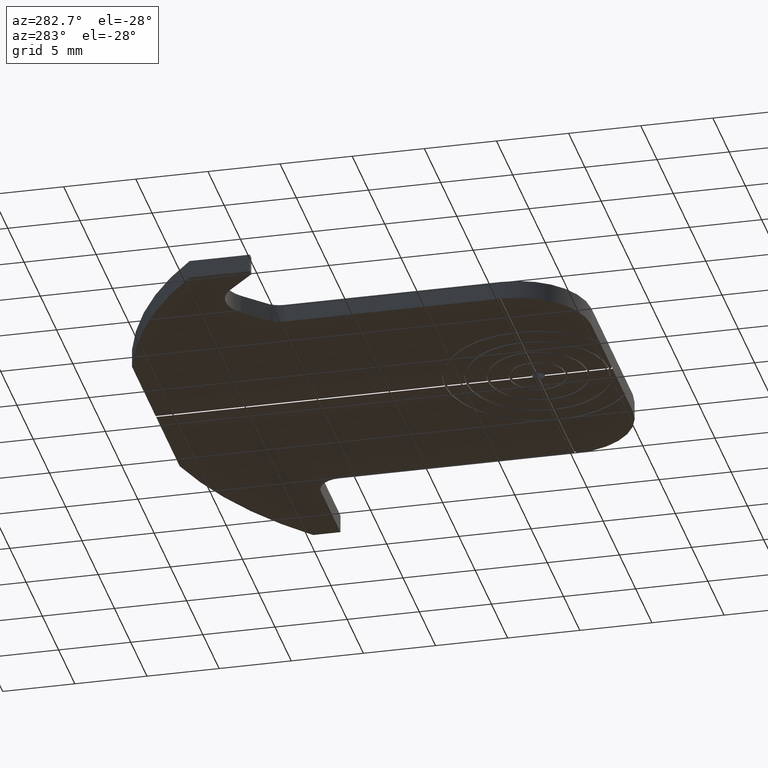
[diagram: clean part render]
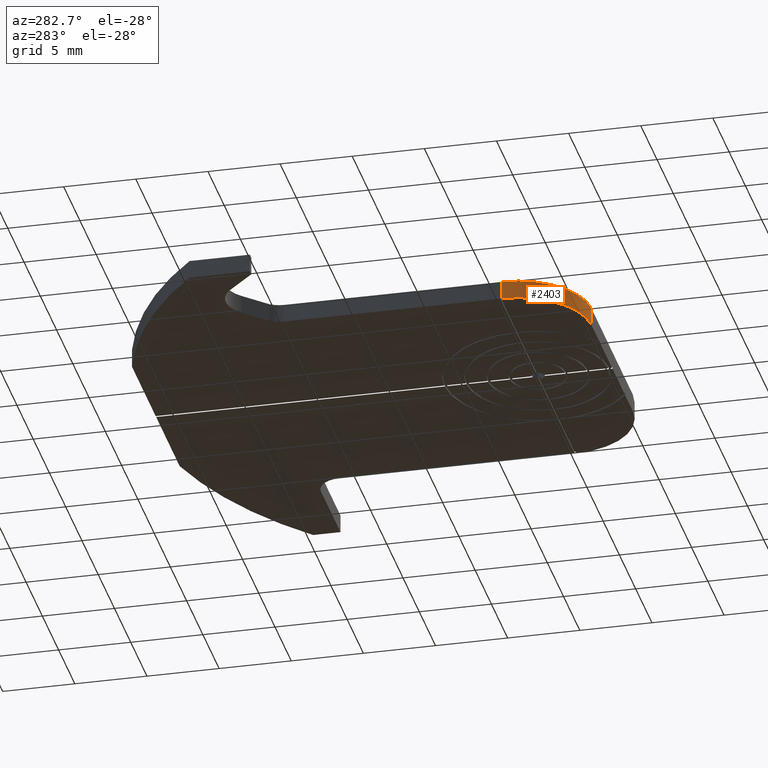
[diagram: same view with one face highlighted and labeled with its STEP entity id]
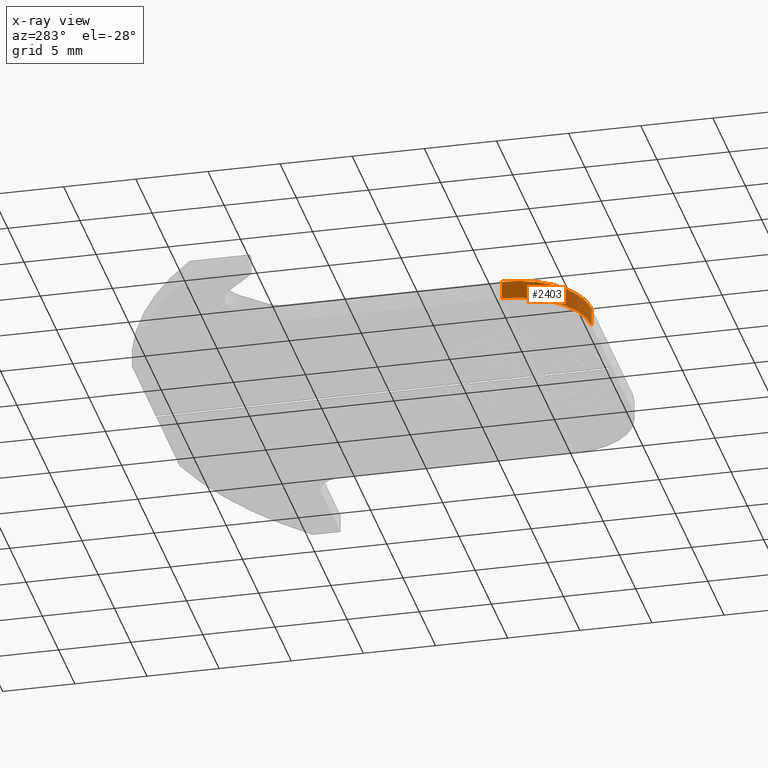
[diagram: x-ray of the same camera — body ghosted, the highlighted face saturated]
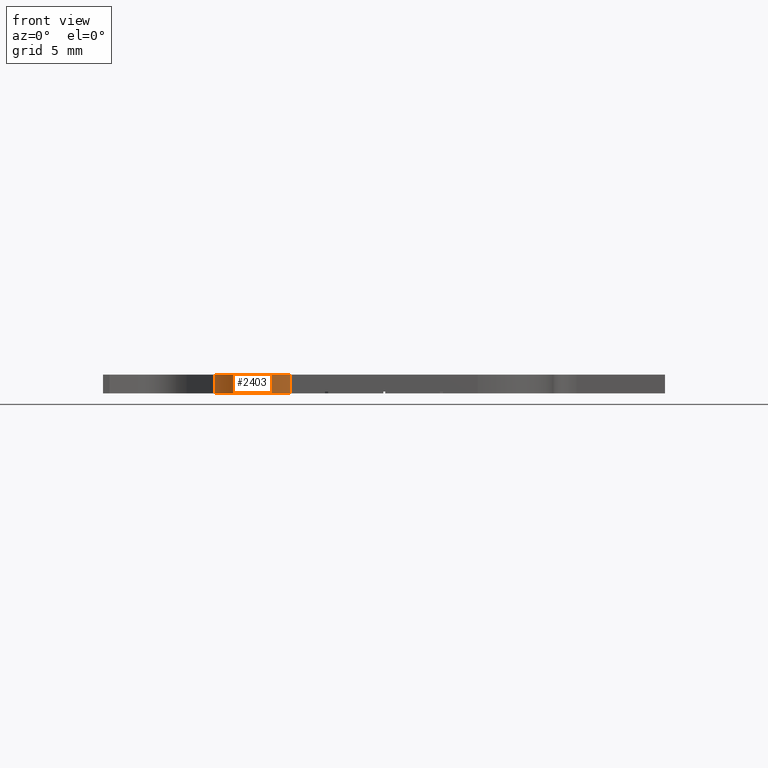
[diagram: same view with one face highlighted and labeled with its STEP entity id]
A machine part, auxiliary view. The second image highlights one B-rep face of the part: STEP entity #2403.
The next image is the same camera in x-ray: the body ghosted, the highlighted face saturated — about 0% of this face is hidden behind the body in this view.
A second angle (front view) of the same face is appended — the face is thin or edge-on in the first view.
In plain terms, the highlighted cylindrical surface (partial cylindrical patch) has radius 5.08 mm, axis along (-0, -0, -1).
Its self-contained STEP definition (entity closure, byte-faithful):
#151 = EDGE_CURVE ( 'NONE', #2236, #832, #4238, .T. ) ;
#290 = CARTESIAN_POINT ( 'NONE',  ( -11.42999999999999972, -0.05080000000001156507, 1.270000000000000018 ) ) ;
#388 = AXIS2_PLACEMENT_3D ( 'NONE', #1992, #2410, #3565 ) ;
#461 = DIRECTION ( 'NONE',  ( -1.000000000000000000, 0.000000000000000000, 0.000000000000000000 ) ) ;
#469 = CARTESIAN_POINT ( 'NONE',  ( -11.42994445671863346, -0.07455535000000322599, 0.1300000000000000044 ) ) ;
#580 = ORIENTED_EDGE ( 'NONE', *, *, #1328, .T. ) ;
#620 = DIRECTION ( 'NONE',  ( -0.000000000000000000, -0.000000000000000000, -1.000000000000000000 ) ) ;
#811 = CARTESIAN_POINT ( 'NONE',  ( -6.350000000000013856, -0.05080000000001218263, 1.270000000000000018 ) ) ;
#832 = VERTEX_POINT ( 'NONE', #2704 ) ;
#854 = CIRCLE ( 'NONE', #4812, 5.079999999999985860 ) ;
#1110 = VECTOR ( 'NONE', #1142, 1000.000000000000000 ) ;
#1124 = DIRECTION ( 'NONE',  ( -1.000000000000000000, 0.000000000000000000, 0.000000000000000000 ) ) ;
#1142 = DIRECTION ( 'NONE',  ( -0.000000000000000000, -0.000000000000000000, -1.000000000000000000 ) ) ;
#1188 = ORIENTED_EDGE ( 'NONE', *, *, #3915, .F. ) ;
#1193 = ORIENTED_EDGE ( 'NONE', *, *, #3421, .T. ) ;
#1243 = ORIENTED_EDGE ( 'NONE', *, *, #151, .F. ) ;
#1328 = EDGE_CURVE ( 'NONE', #3892, #2459, #1470, .T. ) ;
#1359 = CARTESIAN_POINT ( 'NONE',  ( -6.350000000000014744, -5.130799999999998029, 1.270000000000000018 ) ) ;
#1365 = AXIS2_PLACEMENT_3D ( 'NONE', #811, #1969, #461 ) ;
#1470 = CIRCLE ( 'NONE', #388, 5.079999999999985860 ) ;
#1489 = CARTESIAN_POINT ( 'NONE',  ( -6.350000000000013856, -0.05080000000001218263, 0.1300000000000000044 ) ) ;
#1737 = CARTESIAN_POINT ( 'NONE',  ( -6.350000000000014744, -5.130799999999998029, 0.000000000000000000 ) ) ;
#1775 = VECTOR ( 'NONE', #620, 1000.000000000000000 ) ;
#1833 = EDGE_CURVE ( 'NONE', #2236, #4456, #2527, .T. ) ;
#1969 = DIRECTION ( 'NONE',  ( -0.000000000000000000, -0.000000000000000000, -1.000000000000000000 ) ) ;
#1992 = CARTESIAN_POINT ( 'NONE',  ( -6.350000000000013856, -0.05080000000001218263, 0.000000000000000000 ) ) ;
#2213 = DIRECTION ( 'NONE',  ( 0.000000000000000000, 0.000000000000000000, -1.000000000000000000 ) ) ;
#2232 = CYLINDRICAL_SURFACE ( 'NONE', #1365, 5.079999999999985860 ) ;
#2236 = VERTEX_POINT ( 'NONE', #290 ) ;
#2341 = CARTESIAN_POINT ( 'NONE',  ( -11.42994445671863346, -0.07455535000000322599, 0.1300000000000000044 ) ) ;
#2403 = ADVANCED_FACE ( 'NONE', ( #3566 ), #2232, .T. ) ;
#2410 = DIRECTION ( 'NONE',  ( 0.000000000000000000, 0.000000000000000000, 1.000000000000000000 ) ) ;
#2459 = VERTEX_POINT ( 'NONE', #1737 ) ;
#2527 = LINE ( 'NONE', #2668, #1110 ) ;
#2550 = CARTESIAN_POINT ( 'NONE',  ( -6.350000000000013856, -0.05080000000001218263, 1.270000000000000018 ) ) ;
#2668 = CARTESIAN_POINT ( 'NONE',  ( -11.42999999999999972, -0.05080000000001156507, 1.270000000000000018 ) ) ;
#2704 = CARTESIAN_POINT ( 'NONE',  ( -6.350000000000014744, -5.130799999999998029, 1.270000000000000018 ) ) ;
#2902 = LINE ( 'NONE', #1359, #1775 ) ;
#2969 = ORIENTED_EDGE ( 'NONE', *, *, #4767, .F. ) ;
#3055 = AXIS2_PLACEMENT_3D ( 'NONE', #2550, #3309, #4121 ) ;
#3101 = CARTESIAN_POINT ( 'NONE',  ( -11.42994445671863346, -0.07455535000000322599, 0.000000000000000000 ) ) ;
#3185 = LINE ( 'NONE', #2341, #3242 ) ;
#3242 = VECTOR ( 'NONE', #3461, 1000.000000000000000 ) ;
#3309 = DIRECTION ( 'NONE',  ( 0.000000000000000000, 0.000000000000000000, 1.000000000000000000 ) ) ;
#3421 = EDGE_CURVE ( 'NONE', #4833, #3892, #3185, .T. ) ;
#3461 = DIRECTION ( 'NONE',  ( -0.000000000000000000, -0.000000000000000000, -1.000000000000000000 ) ) ;
#3565 = DIRECTION ( 'NONE',  ( 1.000000000000000000, 0.000000000000000000, 0.000000000000000000 ) ) ;
#3566 = FACE_OUTER_BOUND ( 'NONE', #3871, .T. ) ;
#3871 = EDGE_LOOP ( 'NONE', ( #2969, #1193, #580, #1188, #1243, #4745 ) ) ;
#3892 = VERTEX_POINT ( 'NONE', #3101 ) ;
#3915 = EDGE_CURVE ( 'NONE', #832, #2459, #2902, .T. ) ;
#4006 = CARTESIAN_POINT ( 'NONE',  ( -11.42999999999999972, -0.05080000000001156507, 0.1300000000000000044 ) ) ;
#4121 = DIRECTION ( 'NONE',  ( 1.000000000000000000, 0.000000000000000000, 0.000000000000000000 ) ) ;
#4238 = CIRCLE ( 'NONE', #3055, 5.079999999999985860 ) ;
#4456 = VERTEX_POINT ( 'NONE', #4006 ) ;
#4745 = ORIENTED_EDGE ( 'NONE', *, *, #1833, .T. ) ;
#4767 = EDGE_CURVE ( 'NONE', #4833, #4456, #854, .T. ) ;
#4812 = AXIS2_PLACEMENT_3D ( 'NONE', #1489, #2213, #1124 ) ;
#4833 = VERTEX_POINT ( 'NONE', #469 ) ;